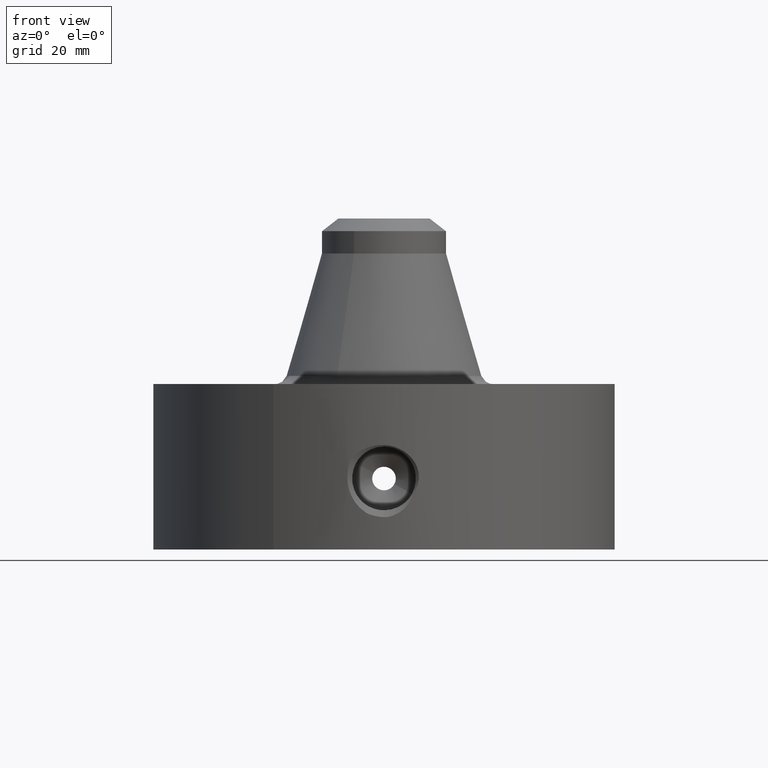
[diagram: clean part render]
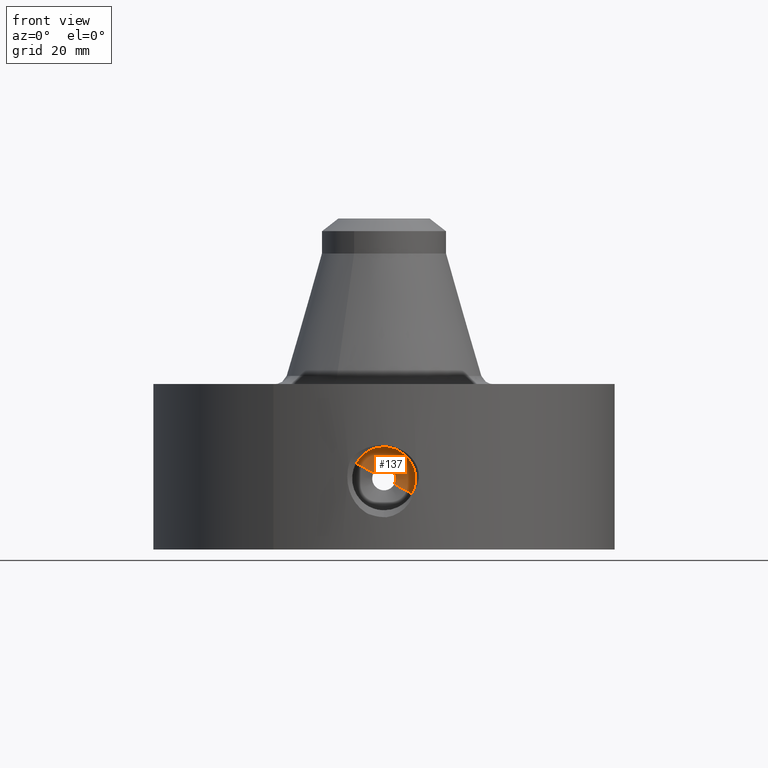
[diagram: same view with one face highlighted and labeled with its STEP entity id]
A machine part, front view. The second image highlights one B-rep face of the part: STEP entity #137.
In plain terms, the highlighted conical surface has half-angle 60 deg.
Its self-contained STEP definition (entity closure, byte-faithful):
#38=AXIS2_PLACEMENT_3D('Cone Axis2P3D',#35,#36,#37) ;
#123=AXIS2_PLACEMENT_3D('Circle Axis2P3D',#121,#122,$) ;
#128=AXIS2_PLACEMENT_3D('Circle Axis2P3D',#126,#127,$) ;
#35=CARTESIAN_POINT('Axis2P3D Location',(-9.66350983644E-017,-1.44321662097,0.750000000003)) ;
#40=CARTESIAN_POINT('Line Origine',(-0.202254259083,-1.50410831049,0.860492005322)) ;
#44=CARTESIAN_POINT('Vertex',(-0.109697820237,-1.44321662097,0.809928192329)) ;
#46=CARTESIAN_POINT('Vertex',(-0.29481069793,-1.56500000001,0.911055818315)) ;
#53=CARTESIAN_POINT('Vertex',(0.29481069793,-1.56500000001,0.588944181691)) ;
#56=CARTESIAN_POINT('Line Origine',(0.202254259083,-1.50410831049,0.639507994684)) ;
#60=CARTESIAN_POINT('Vertex',(0.109697820237,-1.44321662097,0.690071807677)) ;
#121=CARTESIAN_POINT('Axis2P3D Location',(-1.19006342162E-016,-1.56500000001,0.750000000003)) ;
#126=CARTESIAN_POINT('Axis2P3D Location',(-9.66350983644E-017,-1.44321662097,0.750000000003)) ;
#36=DIRECTION('Axis2P3D Direction',(-7.2321661367E-018,-0.0393700787402,0.)) ;
#37=DIRECTION('Axis2P3D XDirection',(0.0345504945626,-4.23385151202E-018,-0.0188750212049)) ;
#41=DIRECTION('Vector Direction',(-0.0299216060045,-0.0196850393701,0.0163462478604)) ;
#57=DIRECTION('Vector Direction',(0.0299216060045,-0.0196850393701,-0.0163462478604)) ;
#122=DIRECTION('Axis2P3D Direction',(-7.2321661367E-018,-0.0393700787402,0.)) ;
#127=DIRECTION('Axis2P3D Direction',(-7.2321661367E-018,-0.0393700787402,0.)) ;
#42=VECTOR('Line Direction',#41,0.0393700787402) ;
#58=VECTOR('Line Direction',#57,0.0393700787402) ;
#132=ORIENTED_EDGE('',*,*,#62,.T.) ;
#133=ORIENTED_EDGE('',*,*,#125,.F.) ;
#134=ORIENTED_EDGE('',*,*,#48,.F.) ;
#135=ORIENTED_EDGE('',*,*,#130,.T.) ;
#137=ADVANCED_FACE('PartBody',(#136),#39,.F.) ;
#124=CIRCLE('generated circle',#123,0.335935000001) ;
#129=CIRCLE('generated circle',#128,0.125) ;
#39=CONICAL_SURFACE('Cone',#38,0.125,1.0471975512) ;
#48=EDGE_CURVE('',#45,#47,#43,.T.) ;
#62=EDGE_CURVE('',#61,#54,#59,.T.) ;
#125=EDGE_CURVE('',#47,#54,#124,.F.) ;
#130=EDGE_CURVE('',#45,#61,#129,.F.) ;
#131=EDGE_LOOP('',(#132,#133,#134,#135)) ;
#136=FACE_OUTER_BOUND('',#131,.T.) ;
#43=LINE('Line',#40,#42) ;
#59=LINE('Line',#56,#58) ;
#45=VERTEX_POINT('',#44) ;
#47=VERTEX_POINT('',#46) ;
#54=VERTEX_POINT('',#53) ;
#61=VERTEX_POINT('',#60) ;